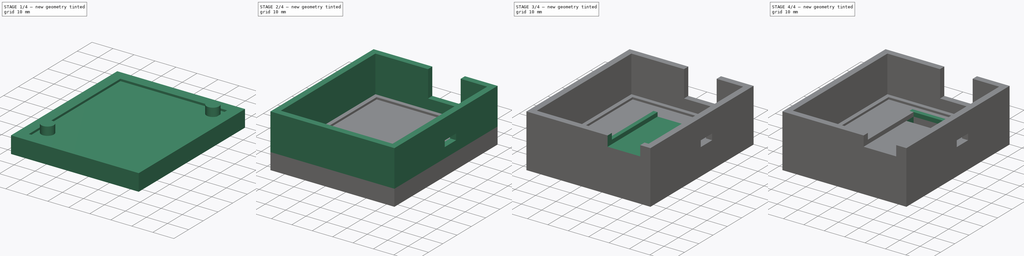
[diagram: build sequence overview — one tinted view per stage of 4, left to right]
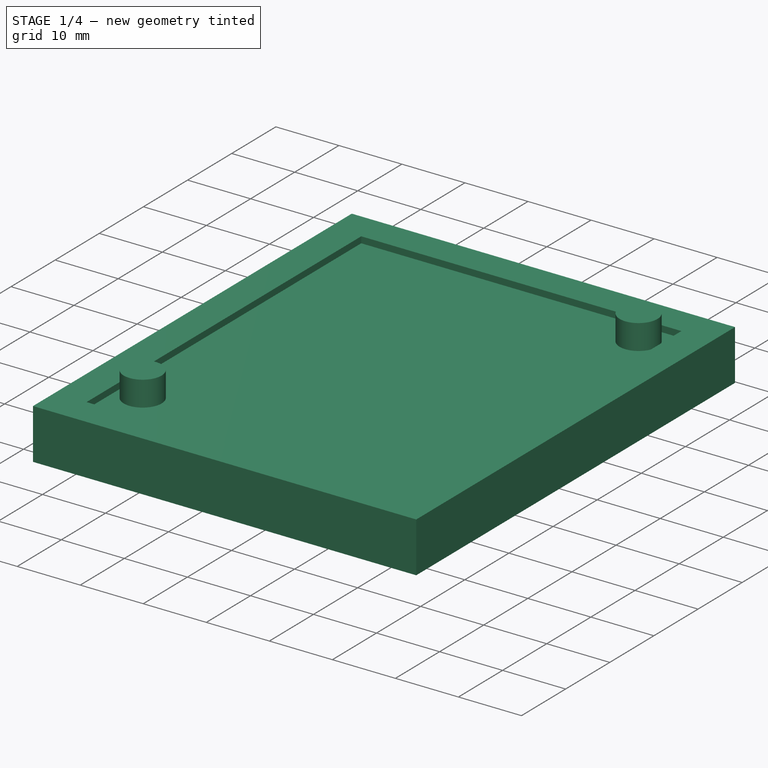
[diagram: stage 1 of 4 — iso view after this stage's code; geometry added in this stage tinted green]
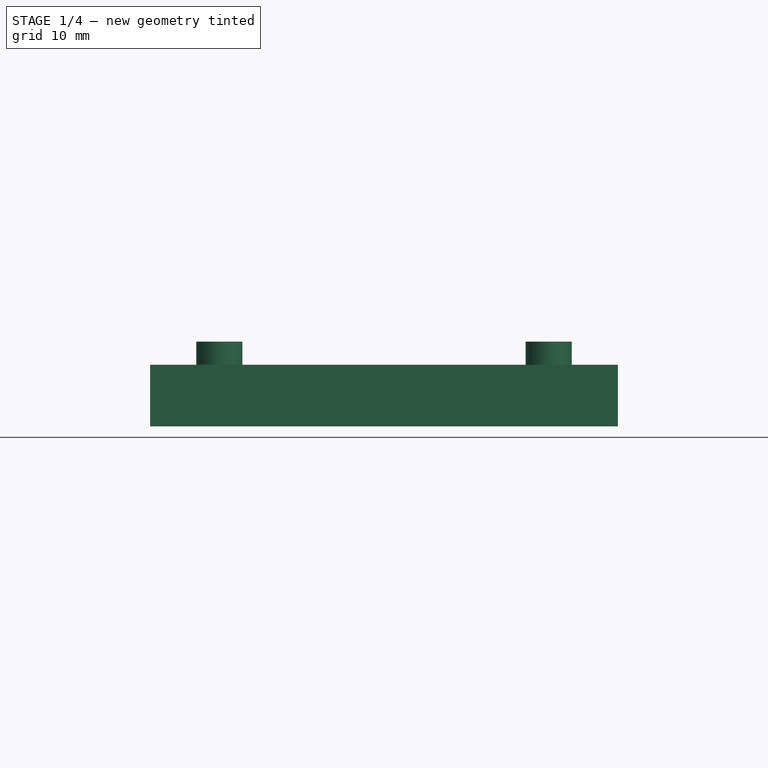
[diagram: stage 1 of 4 — front view after this stage's code; geometry added in this stage tinted green]
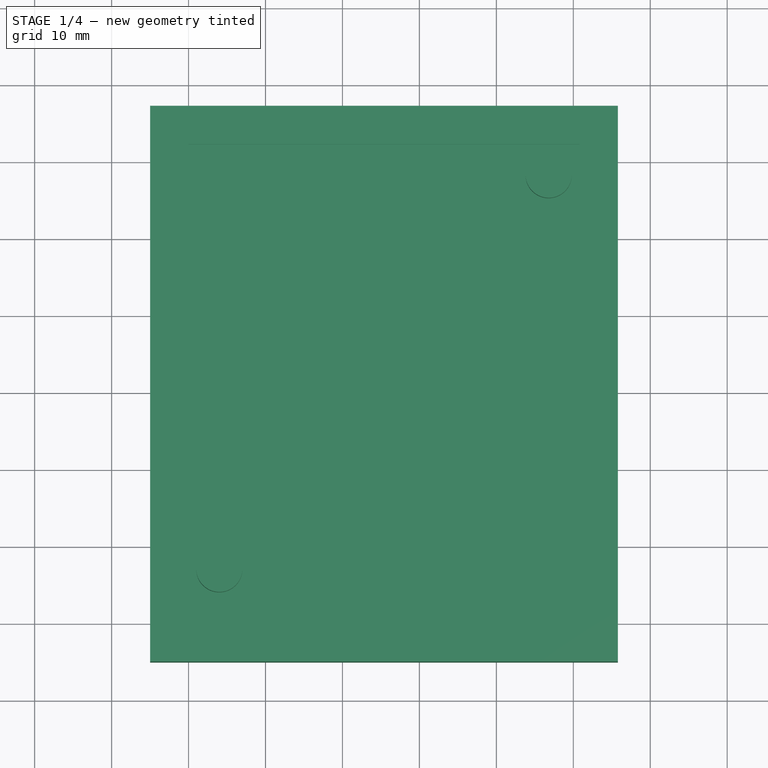
[diagram: stage 1 of 4 — top view after this stage's code; geometry added in this stage tinted green]
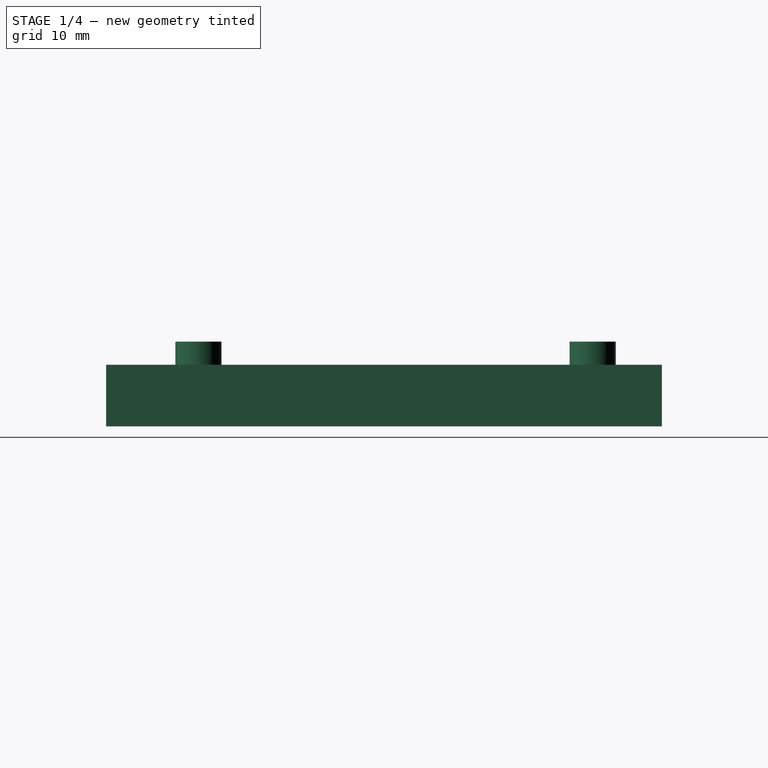
[diagram: stage 1 of 4 — right view after this stage's code; geometry added in this stage tinted green]
FCSTD DOCUMENT  (FreeCAD 0.21R33771 (Git))
Label: Case_rev1
License: All rights reserved
LicenseURL: http://en.wikipedia.org/wiki/All_rights_reserved
objects: Sketcher::SketchObject×12, PartDesign::Pad×6, PartDesign::Pocket×5, PartDesign::Body×1
note: 35 computed .brp shape members not serialized (recipe doc carries the construction recipe); baked Part::Feature solids carry a one-line shape summary decoded from their .brp

FEATURE [Sketcher::SketchObject] Sketch
  FullyConstrained = true
  MapMode = 5
  Support = -> [XY_Plane]
  sketch-geometry (9):
    g0: LineSegment StartX=0 StartY=0 StartZ=0 EndX=50.8 EndY=0 EndZ=0
    g1: LineSegment StartX=50.8 StartY=0 StartZ=0 EndX=50.8 EndY=62.23 EndZ=0
    g2: LineSegment StartX=50.8 StartY=62.23 StartZ=0 EndX=0 EndY=62.23 EndZ=0
    g3: LineSegment StartX=0 StartY=62.23 StartZ=0 EndX=0 EndY=0 EndZ=0
    g4: LineSegment StartX=-5 StartY=67.23 StartZ=0 EndX=55.8 EndY=67.23 EndZ=0
    g5: LineSegment StartX=55.8 StartY=67.23 StartZ=0 EndX=55.8 EndY=-5 EndZ=0
    g6: LineSegment StartX=55.8 StartY=-5 StartZ=0 EndX=-5 EndY=-5 EndZ=0
    g7: LineSegment StartX=-5 StartY=-5 StartZ=0 EndX=-5 EndY=67.23 EndZ=0
    g8: GeomPoint X=25.4 Y=31.115 Z=0
  constraints (23):
    c: Coincident(g0,g1)
    c: Coincident(g1,g2)
    c: Coincident(g2,g3)
    c: Coincident(g3,g0)
    c: Horizontal(g0)
    c: Horizontal(g2)
    c: Vertical(g1)
    c: Vertical(g3)
    c: Coincident(g0,g-1)
    c: DistanceX(g0,g0) = 50.8
    c: DistanceY(g1,g1) = 62.23
    c: Coincident(g4,g5)
    c: Coincident(g5,g6)
    c: Coincident(g6,g7)
    c: Coincident(g7,g4)
    c: Horizontal(g4)
    c: Horizontal(g6)
    c: Vertical(g5)
    c: Vertical(g7)
    c: DistanceX(g4,g2) = 5
    c: DistanceY(g2,g4) = 5
    c: Symmetric(g2,g0,g8)
    c: Symmetric(g4,g5,g8)
FEATURE [PartDesign::Pad] Pad
  Direction = (0,0,1)
  Length = 8
  Length2 = 10
  Profile = -> Sketch
  ReferenceAxis = -> Sketch [N_Axis]
  Reversed = true
  Type = 0
FEATURE [Sketcher::SketchObject] Sketch001
  FullyConstrained = true
  MapMode = 5
  Support = -> [Pad]
  expr: Constraints[10] = Sketch.Constraints[10]
  expr: Constraints[9] = Sketch.Constraints[9]
  sketch-geometry (7):
    g0: LineSegment StartX=0 StartY=0 StartZ=0 EndX=50.8 EndY=0 EndZ=0
    g1: LineSegment StartX=50.8 StartY=0 StartZ=0 EndX=50.8 EndY=62.23 EndZ=0
    g2: LineSegment StartX=50.8 StartY=62.23 StartZ=0 EndX=0 EndY=62.23 EndZ=0
    g3: LineSegment StartX=0 StartY=62.23 StartZ=0 EndX=0 EndY=0 EndZ=0
    g4: GeomPoint X=25.4 Y=31.115 Z=0
    g5: Circle CenterX=46.8 CenterY=58.23 CenterZ=0 NormalX=0 NormalY=0 NormalZ=1 AngleXU=0 Radius=3
    g6: Circle CenterX=4 CenterY=7 CenterZ=0 NormalX=0 NormalY=0 NormalZ=1 AngleXU=0 Radius=3
  constraints (18):
    c: Coincident(g0,g1)
    c: Coincident(g1,g2)
    c: Coincident(g2,g3)
    c: Coincident(g3,g0)
    c: Horizontal(g0)
    c: Horizontal(g2)
    c: Vertical(g1)
    c: Vertical(g3)
    c: Coincident(g0,g-1)
    c: DistanceX(g0,g0) = 50.8
    c: DistanceY(g1,g1) = 62.23
    c: Symmetric(g2,g0,g4)
    c: Diameter(g5) = 6
    c: Diameter(g6) = 6
    c: DistanceX(g0,g6) = 4
    c: DistanceX(g5,g1) = 4
    c: DistanceY(g5,g1) = 4
    c: DistanceY(g0,g6) = 7
FEATURE [PartDesign::Pad] Pad001
  BaseFeature = -> Pad
  Direction = (0,0,1)
  Length = 3
  Length2 = 10
  Profile = -> Sketch001
  ReferenceAxis = -> Sketch001 [N_Axis]
  Type = 0
FEATURE [Sketcher::SketchObject] Sketch002
  FullyConstrained = true
  MapMode = 5
  Support = -> [Pad001]
  expr: Constraints[10] = Sketch001.Constraints[10]
  expr: Constraints[12] = Sketch001.Constraints[12]
  expr: Constraints[13] = Sketch001.Constraints[13]
  expr: Constraints[14] = Sketch001.Constraints[14]
  expr: Constraints[15] = Sketch001.Constraints[15]
  expr: Constraints[16] = Sketch001.Constraints[16]
  expr: Constraints[17] = Sketch001.Constraints[17]
  expr: Constraints[9] = Sketch001.Constraints[9]
  sketch-geometry (11):
    g0: LineSegment StartX=0 StartY=0 StartZ=0 EndX=50.8 EndY=0 EndZ=0
    g1: LineSegment StartX=50.8 StartY=0 StartZ=0 EndX=50.8 EndY=62.23 EndZ=0
    g2: LineSegment StartX=50.8 StartY=62.23 StartZ=0 EndX=0 EndY=62.23 EndZ=0
    g3: LineSegment StartX=0 StartY=62.23 StartZ=0 EndX=0 EndY=0 EndZ=0
    g4: GeomPoint X=25.4 Y=31.115 Z=0
    g5: Circle CenterX=46.8 CenterY=58.23 CenterZ=0 NormalX=0 NormalY=0 NormalZ=1 AngleXU=0 Radius=3
    g6: Circle CenterX=4 CenterY=7 CenterZ=0 NormalX=0 NormalY=0 NormalZ=1 AngleXU=0 Radius=3
    g7: LineSegment StartX=0 StartY=62.23 StartZ=0 EndX=50.8 EndY=62.23 EndZ=0
    g8: LineSegment StartX=50.8 StartY=62.23 StartZ=0 EndX=50.8 EndY=0 EndZ=0
    g9: LineSegment StartX=50.8 StartY=0 StartZ=0 EndX=0 EndY=0 EndZ=0
    g10: LineSegment StartX=0 StartY=0 StartZ=0 EndX=0 EndY=62.23 EndZ=0
  constraints (28):
    c: Coincident(g0,g1)
    c: Coincident(g1,g2)
    c: Coincident(g2,g3)
    c: Coincident(g3,g0)
    c: Horizontal(g0)
    c: Horizontal(g2)
    c: Vertical(g1)
    c: Vertical(g3)
    c: Coincident(g0,g-1)
    c: DistanceX(g0,g0) = 50.8
    c: DistanceY(g1,g1) = 62.23
    c: Symmetric(g2,g0,g4)
    c: Diameter(g5) = 6
    c: Diameter(g6) = 6
    c: DistanceX(g0,g6) = 4
    c: DistanceX(g5,g1) = 4
    c: DistanceY(g5,g1) = 4
    c: DistanceY(g0,g6) = 7
    c: Coincident(g7,g8)
    c: Coincident(g8,g9)
    c: Coincident(g9,g10)
    c: Coincident(g10,g7)
    c: Horizontal(g7)
    c: Horizontal(g9)
    c: Vertical(g8)
    c: Vertical(g10)
    c: Coincident(g7,g2)
    c: Coincident(g8,g0)
FEATURE [PartDesign::Pocket] Pocket
  BaseFeature = -> Pad001
  Direction = (0,0,-1)
  Length = 1
  Length2 = 5
  Profile = -> Sketch002
  ReferenceAxis = -> Sketch002 [N_Axis]
  Type = 0
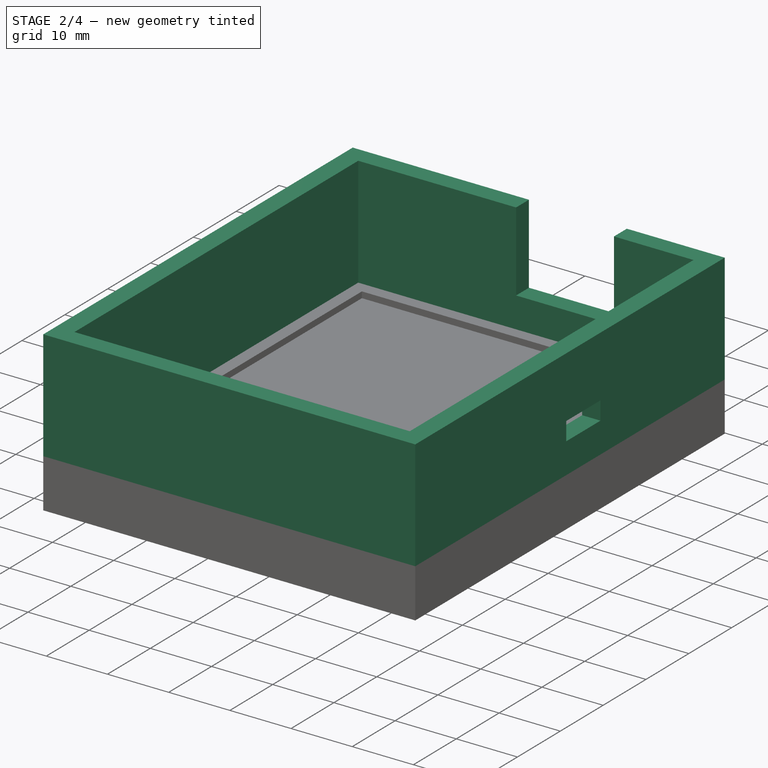
[diagram: stage 2 of 4 — iso view after this stage's code; geometry added in this stage tinted green]
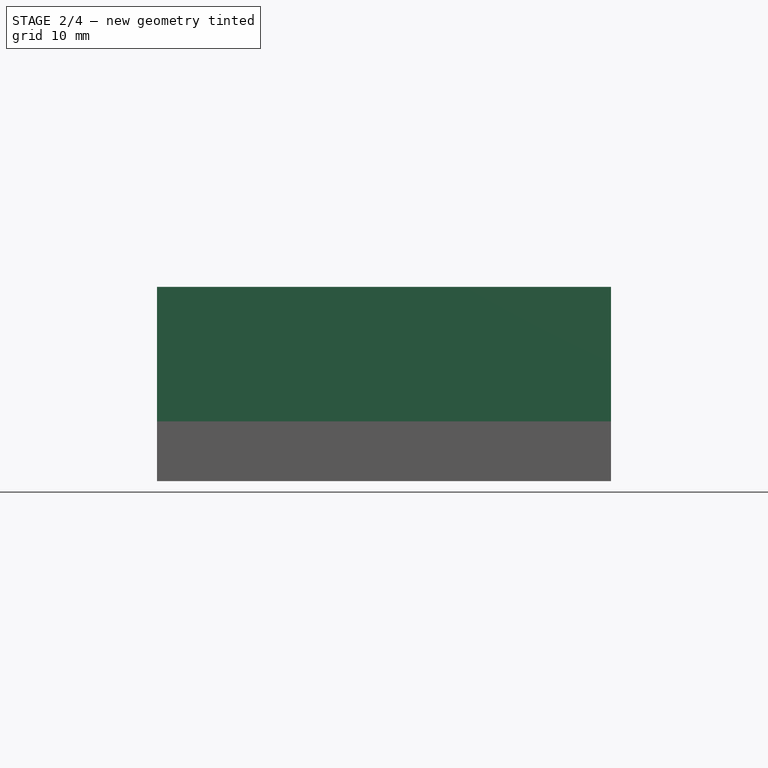
[diagram: stage 2 of 4 — front view after this stage's code; geometry added in this stage tinted green]
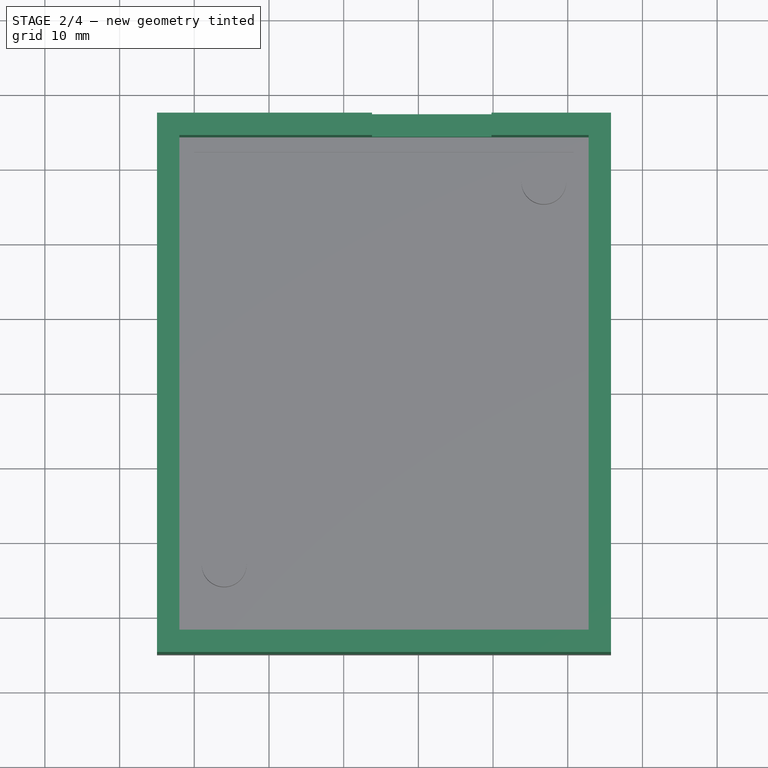
[diagram: stage 2 of 4 — top view after this stage's code; geometry added in this stage tinted green]
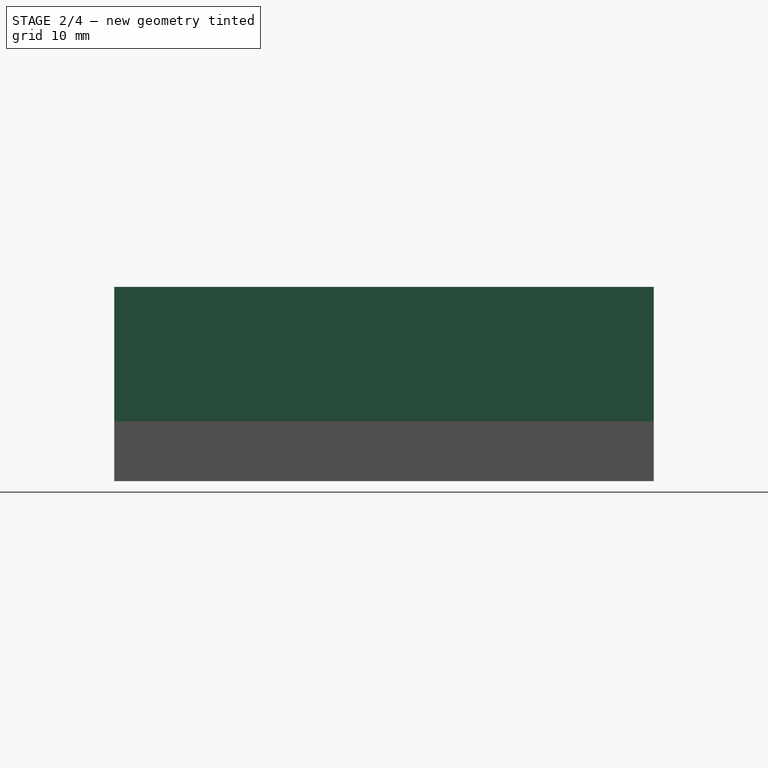
[diagram: stage 2 of 4 — right view after this stage's code; geometry added in this stage tinted green]
FEATURE [Sketcher::SketchObject] Sketch003
  ExternalGeometry = -> [Pocket]
  FullyConstrained = true
  MapMode = 5
  Support = -> [Pocket]
  sketch-geometry (9):
    g0: LineSegment StartX=-5 StartY=67.23 StartZ=0 EndX=55.8 EndY=67.23 EndZ=0
    g1: LineSegment StartX=55.8 StartY=67.23 StartZ=0 EndX=55.8 EndY=-5 EndZ=0
    g2: LineSegment StartX=55.8 StartY=-5 StartZ=0 EndX=-5 EndY=-5 EndZ=0
    g3: LineSegment StartX=-5 StartY=-5 StartZ=0 EndX=-5 EndY=67.23 EndZ=0
    g4: LineSegment StartX=-2 StartY=64.23 StartZ=0 EndX=52.8 EndY=64.23 EndZ=0
    g5: LineSegment StartX=52.8 StartY=64.23 StartZ=0 EndX=52.8 EndY=-2 EndZ=0
    g6: LineSegment StartX=52.8 StartY=-2 StartZ=0 EndX=-2 EndY=-2 EndZ=0
    g7: LineSegment StartX=-2 StartY=-2 StartZ=0 EndX=-2 EndY=64.23 EndZ=0
    g8: GeomPoint X=25.4 Y=31.115 Z=0
  constraints (22):
    c: Coincident(g0,g1)
    c: Coincident(g1,g2)
    c: Coincident(g2,g3)
    c: Coincident(g3,g0)
    c: Horizontal(g0)
    c: Horizontal(g2)
    c: Vertical(g1)
    c: Vertical(g3)
    c: Coincident(g0,g-7)
    c: Coincident(g1,g-10)
    c: Coincident(g4,g5)
    c: Coincident(g5,g6)
    c: Coincident(g6,g7)
    c: Coincident(g7,g4)
    c: Horizontal(g4)
    c: Horizontal(g6)
    c: Vertical(g5)
    c: Vertical(g7)
    c: Symmetric(g0,g1,g8)
    c: Symmetric(g4,g5,g8)
    c: DistanceX(g0,g4) = 3
    c: DistanceY(g4,g0) = 3
FEATURE [PartDesign::Pad] Pad002
  BaseFeature = -> Pocket
  Direction = (0,0,1)
  Length = 18
  Length2 = 10
  Profile = -> Sketch003
  ReferenceAxis = -> Sketch003 [N_Axis]
  Type = 0
FEATURE [Sketcher::SketchObject] Sketch004
  ExternalGeometry = -> [Pad002]
  FullyConstrained = true
  MapMode = 5
  Placement = pos=(0,64.23,0) rot=(1,0,0;1.5708rad)
  Support = -> [Pad002]
  sketch-geometry (8):
    g0: LineSegment StartX=50.8 StartY=-4e-16 StartZ=0 EndX=50.8 EndY=18 EndZ=0
    g1: LineSegment StartX=50.8 StartY=5 StartZ=0 EndX=-2 EndY=5 EndZ=0
    g2: LineSegment StartX=39.8 StartY=5 StartZ=0 EndX=39.8 EndY=18 EndZ=0
    g3: LineSegment StartX=23.8 StartY=5 StartZ=0 EndX=23.8 EndY=18 EndZ=0
    g4: LineSegment StartX=23.8 StartY=5 StartZ=0 EndX=39.8 EndY=5 EndZ=0
    g5: LineSegment StartX=39.8 StartY=5 StartZ=0 EndX=39.8 EndY=18 EndZ=0
    g6: LineSegment StartX=39.8 StartY=18 StartZ=0 EndX=23.8 EndY=18 EndZ=0
    g7: LineSegment StartX=23.8 StartY=18 StartZ=0 EndX=23.8 EndY=5 EndZ=0
  constraints (25):
    c: Coincident(g0,g-8)
    c: PointOnObject(g0,g-5)
    c: Vertical(g0)
    c: PointOnObject(g1,g0)
    c: PointOnObject(g1,g-7)
    c: Horizontal(g1)
    c: DistanceY(g-3,g1) = 2
    c: PointOnObject(g2,g1)
    c: PointOnObject(g2,g-5)
    c: Vertical(g2)
    c: DistanceX(g2,g0) = 11
    c: PointOnObject(g3,g1)
    c: Vertical(g3)
    c: DistanceX(g3,g2) = 16
    c: PointOnObject(g3,g-5)
    c: Coincident(g4,g5)
    c: Coincident(g5,g6)
    c: Coincident(g6,g7)
    c: Coincident(g7,g4)
    c: Horizontal(g4)
    c: Horizontal(g6)
    c: Vertical(g5)
    c: Vertical(g7)
    c: Coincident(g4,g3)
    c: Coincident(g5,g2)
FEATURE [PartDesign::Pocket] Pocket001
  BaseFeature = -> Pad002
  Direction = (0,1,-2e-16)
  Length = 5
  Length2 = 5
  Profile = -> Sketch004
  ReferenceAxis = -> Sketch004 [N_Axis]
  Type = 1
FEATURE [Sketcher::SketchObject] Sketch005
  ExternalGeometry = -> [Pocket001]
  FullyConstrained = true
  MapMode = 5
  Placement = pos=(52.8,0,0) rot=(0.57735,-0.57735,-0.57735;2.0944rad)
  Support = -> [Pocket001]
  sketch-geometry (8):
    g0: LineSegment StartX=-64.23 StartY=5 StartZ=0 EndX=2 EndY=5 EndZ=0
    g1: LineSegment StartX=-62.23 StartY=0 StartZ=0 EndX=-62.23 EndY=18 EndZ=0
    g2: LineSegment StartX=-38.23 StartY=5 StartZ=0 EndX=-38.23 EndY=18 EndZ=0
    g3: LineSegment StartX=-30.23 StartY=5 StartZ=0 EndX=-30.23 EndY=18 EndZ=0
    g4: LineSegment StartX=-38.23 StartY=5 StartZ=0 EndX=-30.23 EndY=5 EndZ=0
    g5: LineSegment StartX=-30.23 StartY=5 StartZ=0 EndX=-30.23 EndY=8 EndZ=0
    g6: LineSegment StartX=-30.23 StartY=8 StartZ=0 EndX=-38.23 EndY=8 EndZ=0
    g7: LineSegment StartX=-38.23 StartY=8 StartZ=0 EndX=-38.23 EndY=5 EndZ=0
  constraints (27):
    c: PointOnObject(g0,g-4)
    c: PointOnObject(g0,g-6)
    c: Horizontal(g0)
    c: DistanceY(g-3,g0) = 2
    c: Coincident(g1,g-10)
    c: PointOnObject(g1,g-5)
    c: Vertical(g1)
    c: Vertical(g2)
    c: PointOnObject(g2,g-5)
    c: DistanceX(g1,g2) = 24
    c: PointOnObject(g3,g-5)
    c: Vertical(g3)
    c: DistanceX(g-5,g-5) = 66.23
    c: DistanceX(g2,g3) = 8
    c: PointOnObject(g2,g0)
    c: PointOnObject(g3,g0)
    c: Coincident(g4,g5)
    c: Coincident(g5,g6)
    c: Coincident(g6,g7)
    c: Coincident(g7,g4)
    c: Horizontal(g4)
    c: Horizontal(g6)
    c: Vertical(g5)
    c: Vertical(g7)
    c: Coincident(g4,g2)
    c: PointOnObject(g5,g3)
    c: DistanceY(g5,g5) = 3
FEATURE [PartDesign::Pocket] Pocket002
  BaseFeature = -> Pocket001
  Direction = (1,0,0)
  Length = 5
  Length2 = 5
  Profile = -> Sketch005
  ReferenceAxis = -> Sketch005 [N_Axis]
  Type = 1
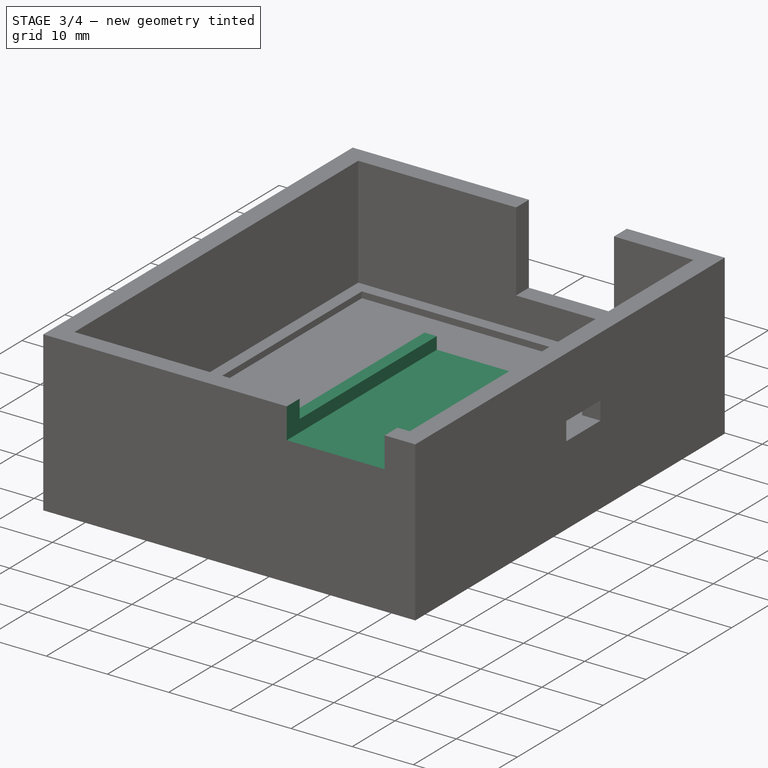
[diagram: stage 3 of 4 — iso view after this stage's code; geometry added in this stage tinted green]
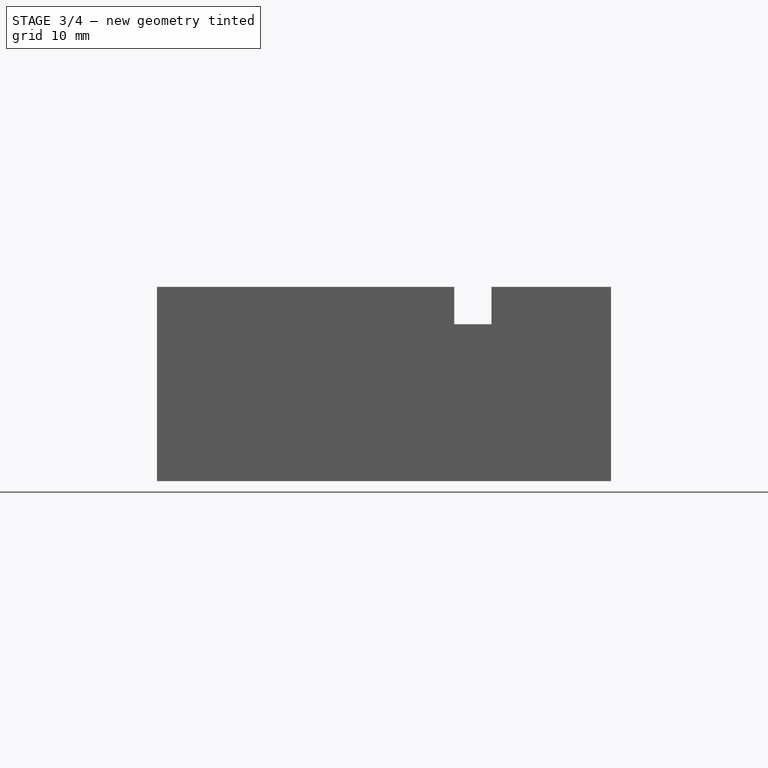
[diagram: stage 3 of 4 — front view after this stage's code; geometry added in this stage tinted green]
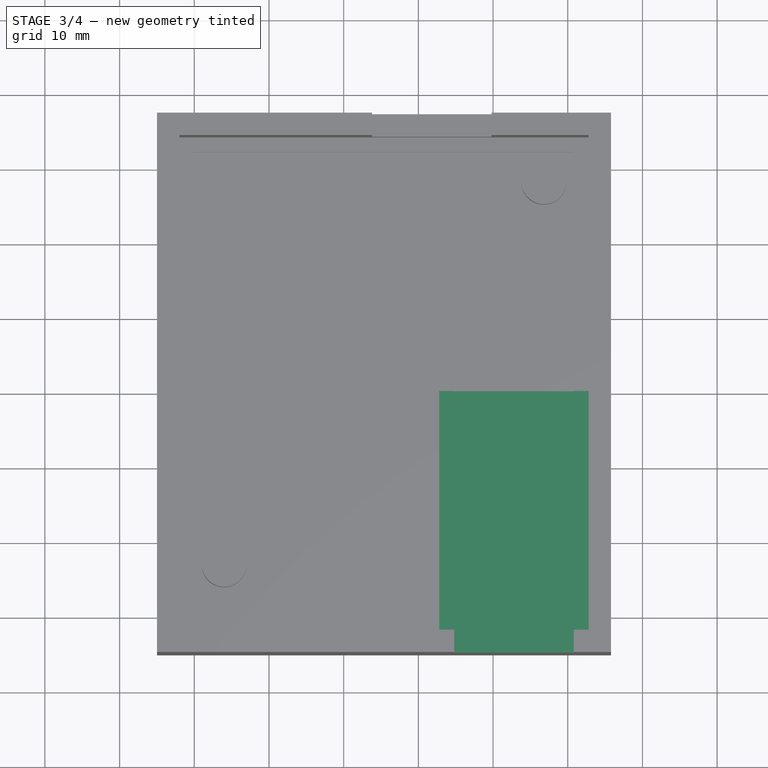
[diagram: stage 3 of 4 — top view after this stage's code; geometry added in this stage tinted green]
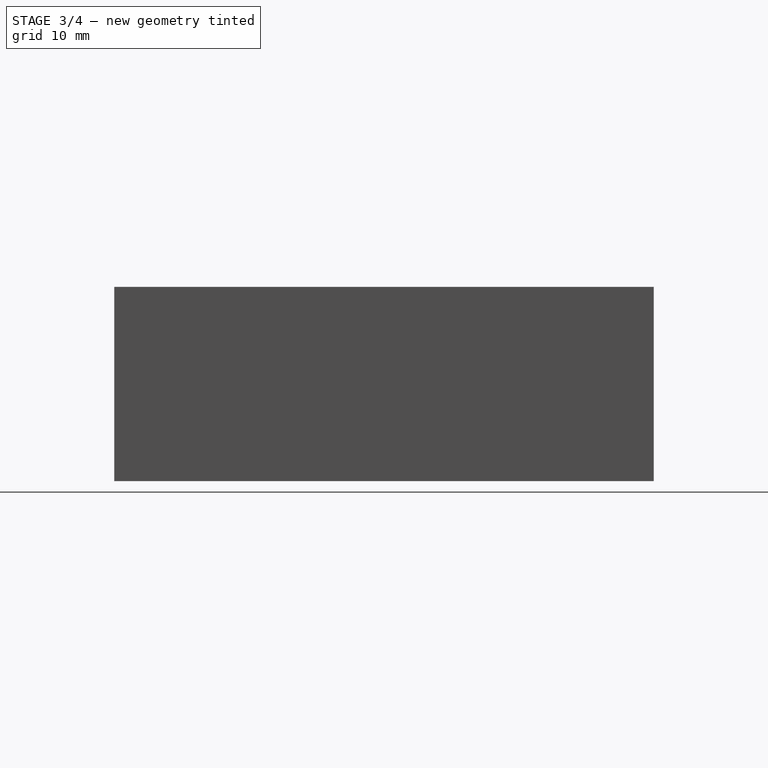
[diagram: stage 3 of 4 — right view after this stage's code; geometry added in this stage tinted green]
FEATURE [Sketcher::SketchObject] Sketch006
  ExternalGeometry = -> [Pocket002]
  FullyConstrained = true
  MapMode = 5
  Placement = pos=(0,-5,0) rot=(1,0,0;1.5708rad)
  Support = -> [Pocket002]
  sketch-geometry (4):
    g0: LineSegment StartX=34.8 StartY=18 StartZ=0 EndX=34.8 EndY=13 EndZ=0
    g1: LineSegment StartX=50.8 StartY=18 StartZ=0 EndX=50.8 EndY=13 EndZ=0
    g2: LineSegment StartX=34.8 StartY=13 StartZ=0 EndX=50.8 EndY=13 EndZ=0
    g3: LineSegment StartX=34.8 StartY=18 StartZ=0 EndX=50.8 EndY=18 EndZ=0
  constraints (12):
    c: PointOnObject(g0,g-3)
    c: Vertical(g0)
    c: PointOnObject(g1,g-3)
    c: Vertical(g1)
    c: DistanceX(g0,g1) = 16
    c: DistanceY(g1,g1) = 5
    c: Horizontal(g0,g1)
    c: Coincident(g2,g0)
    c: Coincident(g2,g1)
    c: Coincident(g3,g0)
    c: Coincident(g3,g1)
    c: DistanceX(g1,g-10) = 2
FEATURE [PartDesign::Pocket] Pocket003
  BaseFeature = -> Pocket002
  Direction = (0,1,-2e-16)
  Length = 0
  Length2 = 5
  Profile = -> Sketch006
  ReferenceAxis = -> Sketch006 [N_Axis]
  Type = 3
  UpToFace = -> Pocket002 [Face20]
FEATURE [Sketcher::SketchObject] Sketch007
  ExternalGeometry = -> [Pocket003]
  FullyConstrained = true
  MapMode = 5
  Placement = pos=(0,-2,0) rot=(0,0.707107,0.707107;3.14159rad)
  Support = -> [Pocket003]
  sketch-geometry (8):
    g0: LineSegment StartX=-50.8 StartY=13 StartZ=0 EndX=-34.8 EndY=13 EndZ=0
    g1: LineSegment StartX=-34.8 StartY=13 StartZ=0 EndX=-34.8 EndY=15 EndZ=0
    g2: LineSegment StartX=-50.8 StartY=13 StartZ=0 EndX=-50.8 EndY=15 EndZ=0
    g3: LineSegment StartX=-50.8 StartY=15 StartZ=0 EndX=-52.8 EndY=15 EndZ=0
    g4: LineSegment StartX=-52.8 StartY=15 StartZ=0 EndX=-52.8 EndY=10 EndZ=0
    g5: LineSegment StartX=-34.8 StartY=15 StartZ=0 EndX=-32.8 EndY=15 EndZ=0
    g6: LineSegment StartX=-32.8 StartY=15 StartZ=0 EndX=-32.8 EndY=10 EndZ=0
    g7: LineSegment StartX=-52.8 StartY=10 StartZ=0 EndX=-32.8 EndY=10 EndZ=0
  constraints (23):
    c: Coincident(g0,g-4)
    c: Coincident(g0,g-5)
    c: PointOnObject(g1,g0)
    c: PointOnObject(g1,g-5)
    c: Vertical(g1)
    c: PointOnObject(g2,g-4)
    c: Horizontal(g2,g1)
    c: DistanceY(g2,g2) = 2
    c: Coincident(g2,g0)
    c: Coincident(g3,g2)
    c: Horizontal(g3)
    c: DistanceX(g3,g3) = 2
    c: Coincident(g4,g3)
    c: Vertical(g4)
    c: DistanceY(g4,g4) = 5
    c: Coincident(g5,g1)
    c: Horizontal(g5)
    c: Coincident(g6,g5)
    c: Vertical(g6)
    c: Horizontal(g4,g6)
    c: DistanceX(g5,g5) = 2
    c: Coincident(g7,g4)
    c: Coincident(g7,g6)
FEATURE [PartDesign::Pad] Pad003
  BaseFeature = -> Pocket003
  Direction = (0,1,-2e-16)
  Length = 32
  Length2 = 10
  Profile = -> Sketch007
  ReferenceAxis = -> Sketch007 [N_Axis]
  Type = 0
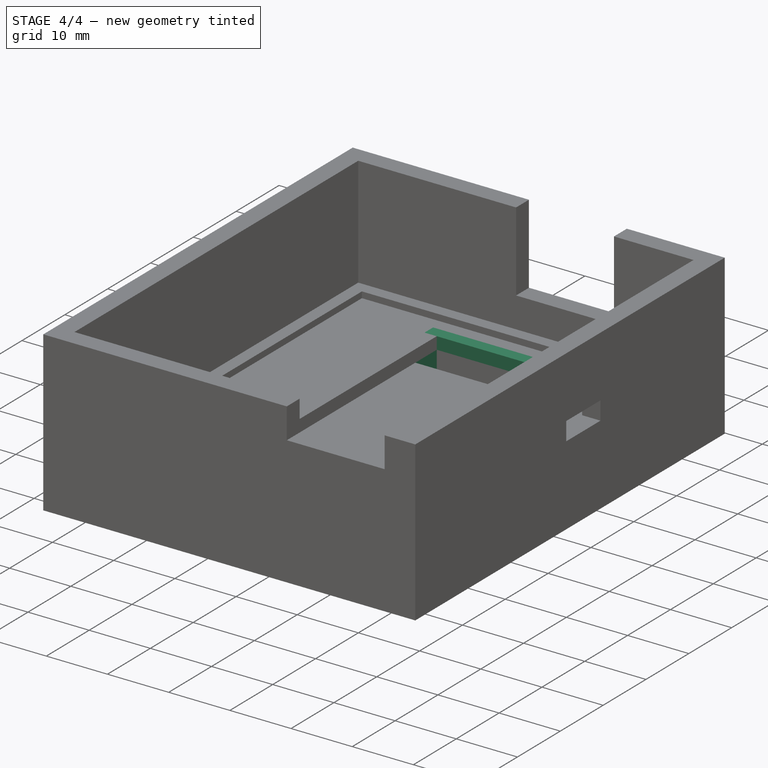
[diagram: stage 4 of 4 — iso view after this stage's code; geometry added in this stage tinted green]
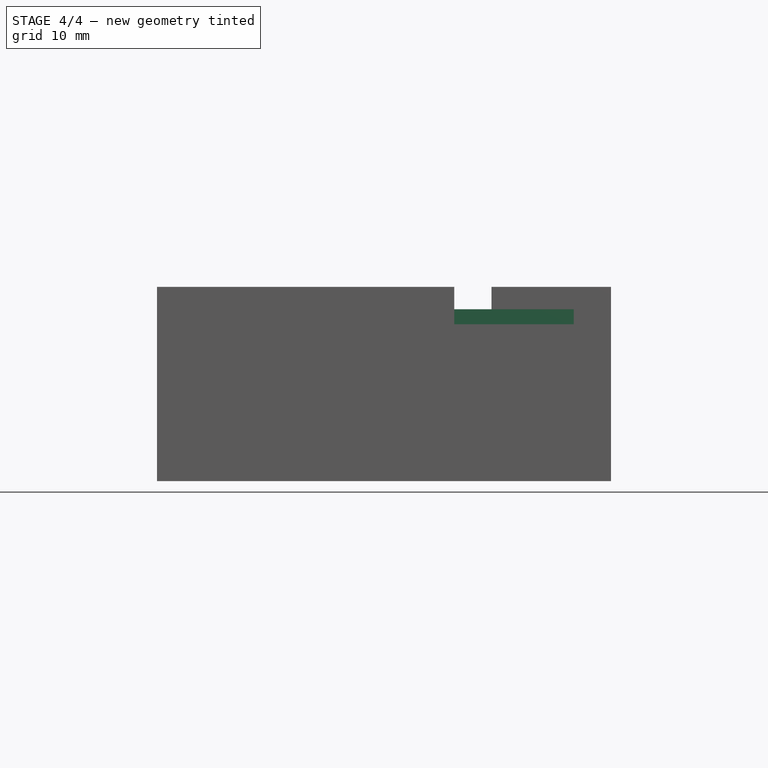
[diagram: stage 4 of 4 — front view after this stage's code; geometry added in this stage tinted green]
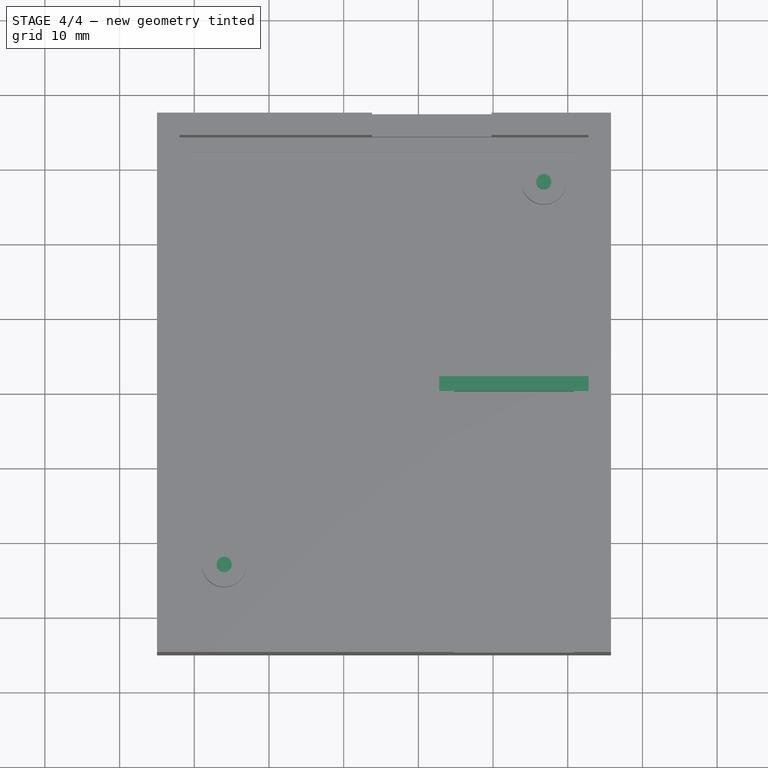
[diagram: stage 4 of 4 — top view after this stage's code; geometry added in this stage tinted green]
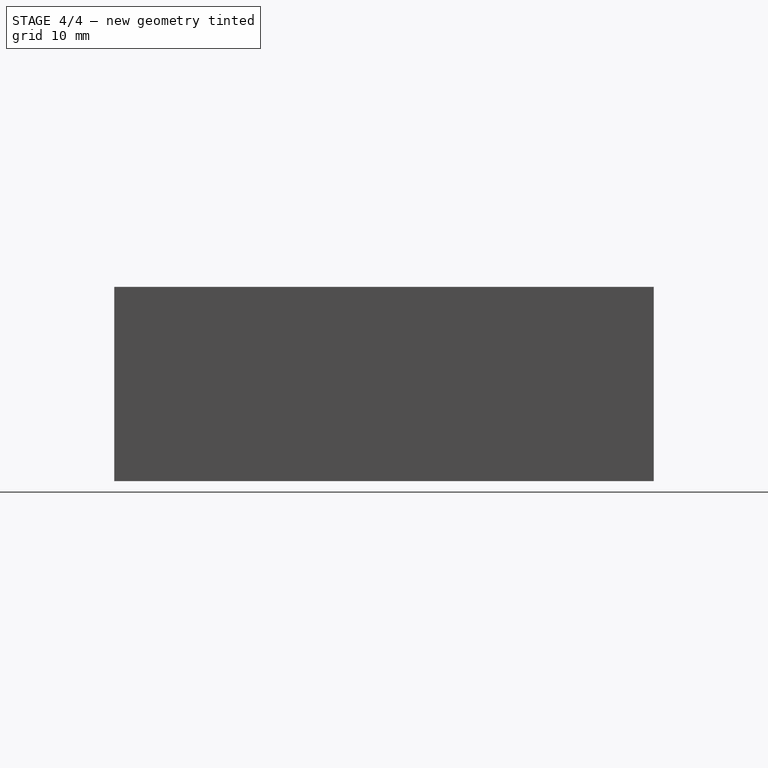
[diagram: stage 4 of 4 — right view after this stage's code; geometry added in this stage tinted green]
FEATURE [Sketcher::SketchObject] Sketch008
  ExternalGeometry = -> [Pad003]
  FullyConstrained = true
  MapMode = 5
  Placement = pos=(0,30,0) rot=(0,0.707107,0.707107;3.14159rad)
  Support = -> [Pad003]
  sketch-geometry (4):
    g0: LineSegment StartX=-34.8 StartY=13 StartZ=0 EndX=-34.8 EndY=10 EndZ=0
    g1: LineSegment StartX=-50.8 StartY=13 StartZ=0 EndX=-50.8 EndY=10 EndZ=0
    g2: LineSegment StartX=-50.8 StartY=13 StartZ=0 EndX=-34.8 EndY=13 EndZ=0
    g3: LineSegment StartX=-34.8 StartY=10 StartZ=0 EndX=-50.8 EndY=10 EndZ=0
  constraints (11):
    c: Coincident(g0,g-3)
    c: PointOnObject(g0,g-4)
    c: Vertical(g0)
    c: Coincident(g1,g-3)
    c: PointOnObject(g1,g-4)
    c: Vertical(g1)
    c: Coincident(g2,g1)
    c: Coincident(g2,g0)
    c: Coincident(g3,g0)
    c: PointOnObject(g3,g1)
    c: Horizontal(g3)
FEATURE [PartDesign::Pocket] Pocket004
  BaseFeature = -> Pad003
  Direction = (0,-1,2e-16)
  Length = 5
  Length2 = 5
  Profile = -> Sketch008
  ReferenceAxis = -> Sketch008 [N_Axis]
  Type = 0
FEATURE [Sketcher::SketchObject] Sketch009
  ExternalGeometry = -> [Pocket004]
  FullyConstrained = true
  MapMode = 5
  Placement = pos=(52.8,0,0) rot=(0.57735,-0.57735,-0.57735;2.0944rad)
  Support = -> [Pocket004]
  sketch-geometry (4):
    g0: LineSegment StartX=-30 StartY=10 StartZ=0 EndX=-32 EndY=10 EndZ=0
    g1: LineSegment StartX=-32 StartY=10 StartZ=0 EndX=-32 EndY=15 EndZ=0
    g2: LineSegment StartX=-32 StartY=15 StartZ=0 EndX=-30 EndY=15 EndZ=0
    g3: LineSegment StartX=-30 StartY=15 StartZ=0 EndX=-30 EndY=10 EndZ=0
  constraints (11):
    c: Coincident(g0,g1)
    c: Coincident(g1,g2)
    c: Coincident(g2,g3)
    c: Coincident(g3,g0)
    c: Horizontal(g0)
    c: Horizontal(g2)
    c: Vertical(g1)
    c: Vertical(g3)
    c: Coincident(g0,g-3)
    c: Horizontal(g1,g-3)
    c: DistanceX(g2,g2) = 2
FEATURE [PartDesign::Pad] Pad004
  BaseFeature = -> Pocket004
  Direction = (-1,0,0)
  Length = 10
  Length2 = 10
  Profile = -> Sketch009
  ReferenceAxis = -> Sketch009 [N_Axis]
  Type = 3
  UpToFace = -> Pocket004 [Face29]
FEATURE [Sketcher::SketchObject] Sketch010
  ExternalGeometry = -> [Pad004]
  FullyConstrained = true
  MapMode = 5
  Placement = pos=(0,0,3) rot=(0,0,1;0rad)
  Support = -> [Pad004]
  sketch-geometry (2):
    g0: Circle CenterX=46.8 CenterY=58.23 CenterZ=0 NormalX=0 NormalY=0 NormalZ=1 AngleXU=0 Radius=1
    g1: Circle CenterX=4 CenterY=7 CenterZ=0 NormalX=0 NormalY=0 NormalZ=1 AngleXU=0 Radius=1
  constraints (4):
    c: Coincident(g0,g-3)
    c: Coincident(g1,g-4)
    c: Diameter(g1) = 2
    c: Diameter(g0) = 2
FEATURE [PartDesign::Pad] Pad005
  BaseFeature = -> Pad004
  Direction = (0,0,1)
  Length = 2
  Length2 = 10
  Profile = -> Sketch010
  ReferenceAxis = -> Sketch010 [N_Axis]
  Type = 0
FEATURE [Sketcher::SketchObject] Sketch011
  ExternalGeometry = -> [Pad005]
  FullyConstrained = true
  MapMode = 5
  Placement = pos=(0,0,18) rot=(0,0,1;0rad)
  Support = -> [Pad005]
  sketch-geometry (17):
    g0: LineSegment StartX=39.8 StartY=64.23 StartZ=0 EndX=52.8 EndY=64.23 EndZ=0
    g1: LineSegment StartX=52.8 StartY=64.23 StartZ=0 EndX=52.8 EndY=-2 EndZ=0
    g2: LineSegment StartX=52.8 StartY=-2 StartZ=0 EndX=50.8 EndY=-2 EndZ=0
    g3: LineSegment StartX=34.8 StartY=-2 StartZ=0 EndX=-2 EndY=-2 EndZ=0
    g4: LineSegment StartX=-2 StartY=-2 StartZ=0 EndX=-2 EndY=64.23 EndZ=0
    g5: LineSegment StartX=-2 StartY=64.23 StartZ=0 EndX=23.8 EndY=64.23 EndZ=0
    g6: LineSegment StartX=39.8 StartY=65.23 StartZ=0 EndX=53.8 EndY=65.23 EndZ=0
    g7: LineSegment StartX=53.8 StartY=65.23 StartZ=0 EndX=53.8 EndY=-3 EndZ=0
    g8: LineSegment StartX=53.8 StartY=-3 StartZ=0 EndX=50.8 EndY=-3 EndZ=0
    g9: LineSegment StartX=50.8 StartY=-3 StartZ=0 EndX=50.8 EndY=-2 EndZ=0
    g10: LineSegment StartX=39.8 StartY=65.23 StartZ=0 EndX=39.8 EndY=64.23 EndZ=0
    g11: LineSegment StartX=23.8 StartY=64.23 StartZ=0 EndX=23.8 EndY=65.23 EndZ=0
    g12: LineSegment StartX=34.8 StartY=-3 StartZ=0 EndX=-3 EndY=-3 EndZ=0
    g13: LineSegment StartX=-3 StartY=-3 StartZ=0 EndX=-3 EndY=65.23 EndZ=0
    g14: LineSegment StartX=-3 StartY=65.23 StartZ=0 EndX=23.8 EndY=65.23 EndZ=0
    g15: LineSegment StartX=34.8 StartY=-3 StartZ=0 EndX=34.8 EndY=-2 EndZ=0
    g16: LineSegment StartX=50.8 StartY=-3 StartZ=0 EndX=50.8 EndY=-2 EndZ=0
  constraints (42):
    c: Coincident(g0,g-9)
    c: Coincident(g0,g-5)
    c: Coincident(g1,g0)
    c: Coincident(g1,g-6)
    c: Coincident(g2,g1)
    c: Coincident(g2,g-12)
    c: Coincident(g3,g-11)
    c: Coincident(g3,g-8)
    c: Coincident(g4,g3)
    c: Coincident(g4,g-8)
    c: Coincident(g5,g4)
    c: Coincident(g5,g-10)
    c: PointOnObject(g6,g-9)
    c: Horizontal(g6)
    c: Coincident(g7,g6)
    c: Vertical(g7)
    c: Coincident(g8,g7)
    c: Horizontal(g8)
    c: Coincident(g9,g8)
    c: Coincident(g9,g2)
    c: Vertical(g9)
    c: Coincident(g10,g6)
    c: Coincident(g10,g0)
    c: Coincident(g11,g5)
    c: Vertical(g11)
    c: Horizontal(g11,g6)
    c: PointOnObject(g12,g-11)
    c: Horizontal(g12)
    c: Coincident(g13,g12)
    c: Vertical(g13)
    c: Coincident(g14,g13)
    c: Coincident(g14,g11)
    c: Horizontal(g14)
    c: Horizontal(g12,g8)
    c: Coincident(g15,g12)
    c: Coincident(g15,g3)
    c: Coincident(g16,g8)
    c: Coincident(g16,g2)
    c: Equal(g15,g11)
    c: DistanceY(g12,g3) = 1
    c: DistanceX(g1,g7) = 1
    c: DistanceX(g12,g3) = 1
FEATURE [PartDesign::Body] Body
  Group = -> [Sketch,Pad,Sketch001,Pad001,Sketch002,Pocket,Sketch003,Pad002,Sketch004,Pocket001,Sketch005,Pocket002,Sketch006,Pocket003,Sketch007,Pad003,Sketch008,Pocket004,Sketch009,Pad004,Sketch010,Pad005,Sketch011]
  Origin = -> Origin
  Tip = -> Pad005
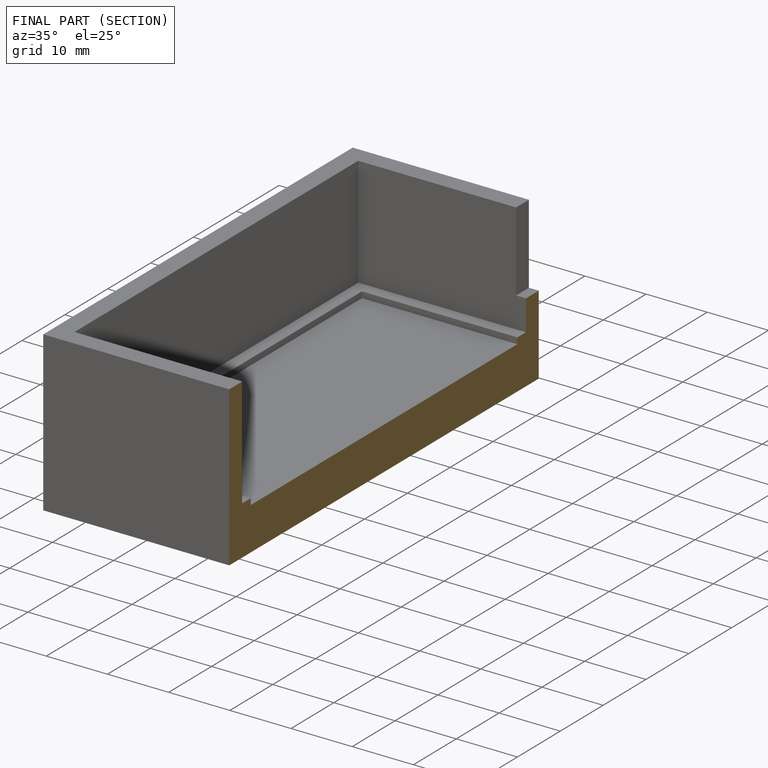
[diagram: finished part — half-section view (interior)]
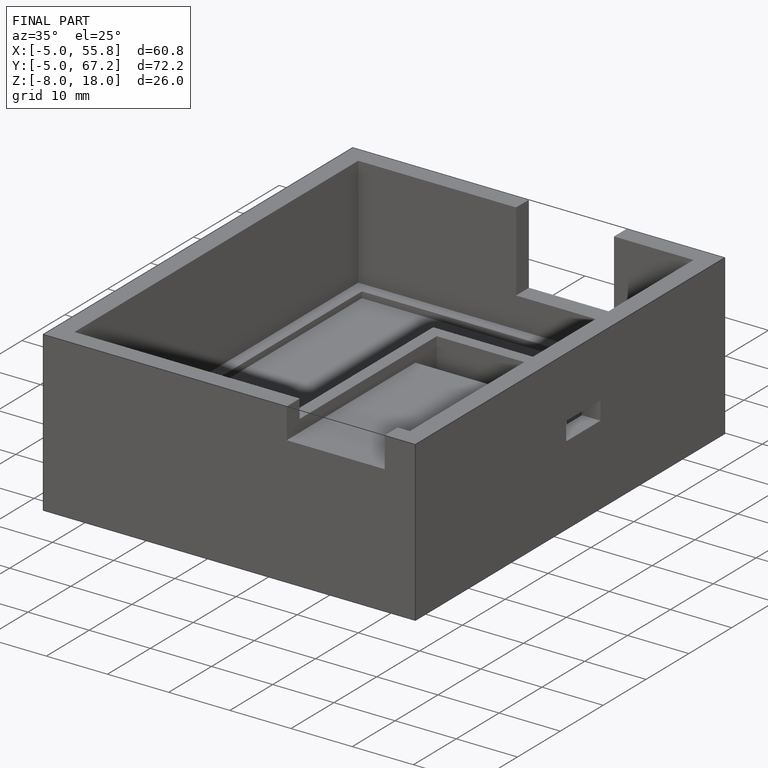
[diagram: finished part — iso view with bounding-box wireframe]
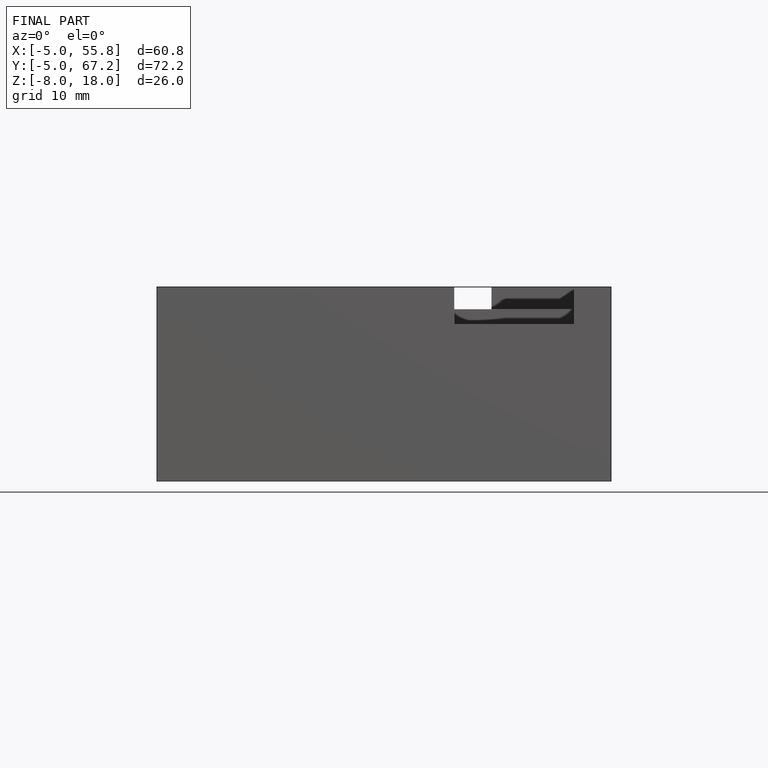
[diagram: finished part — front view with bounding-box wireframe]
